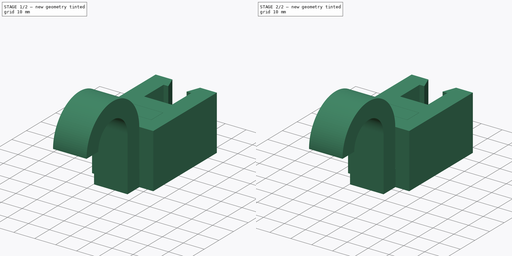
[diagram: build sequence overview — one tinted view per stage of 2, left to right]
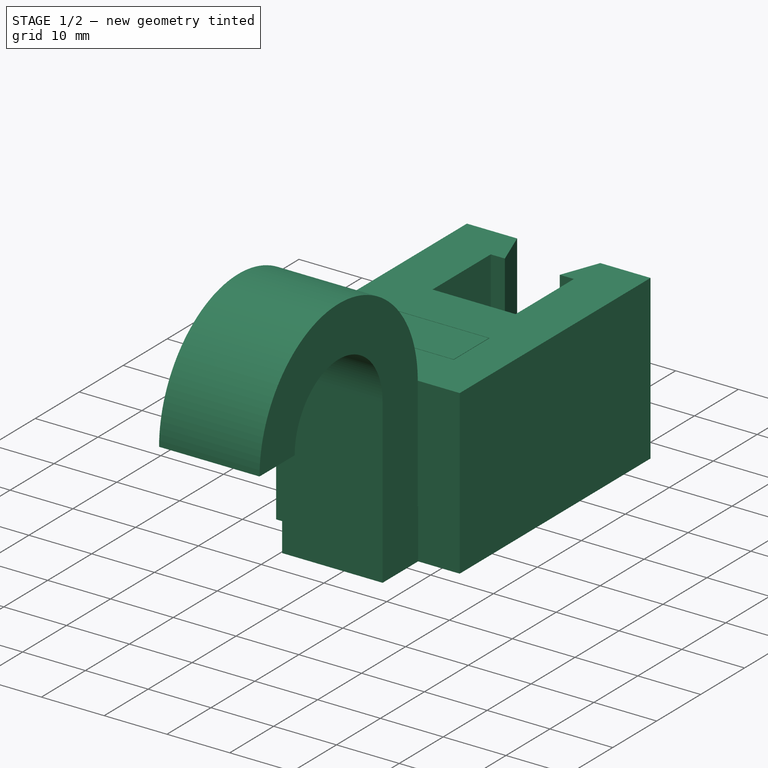
[diagram: stage 1 of 2 — iso view after this stage's code; geometry added in this stage tinted green]
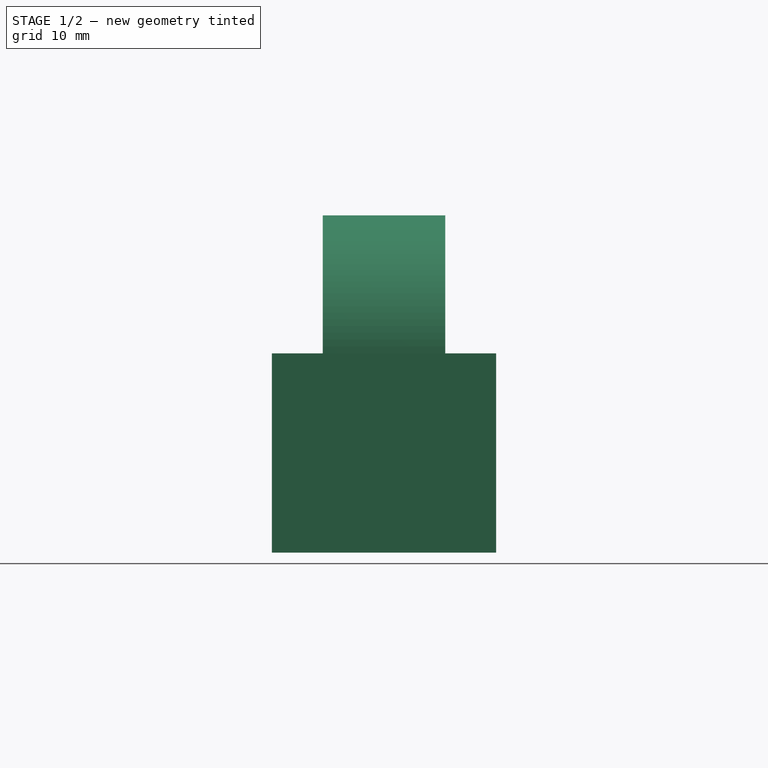
[diagram: stage 1 of 2 — front view after this stage's code; geometry added in this stage tinted green]
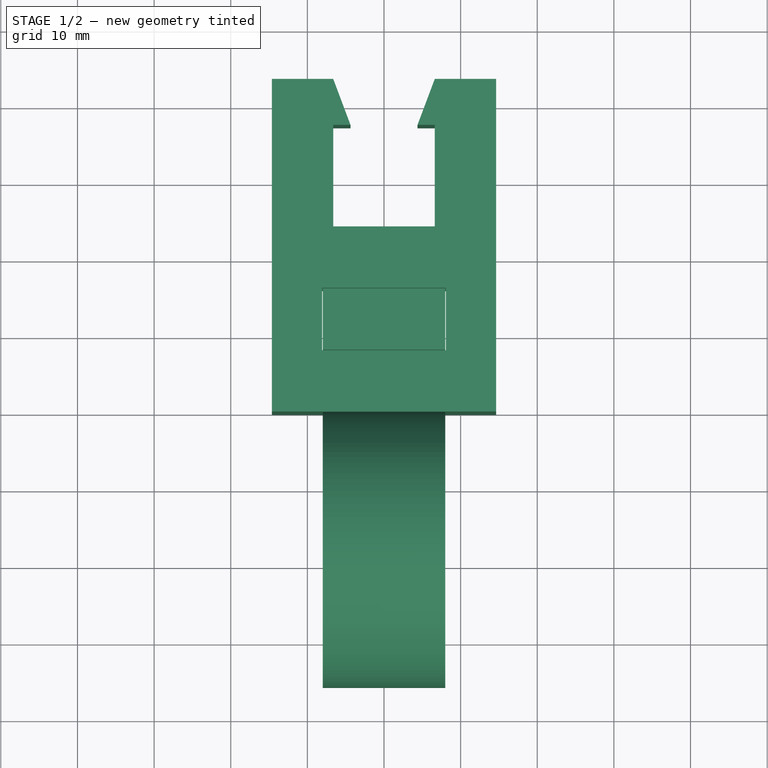
[diagram: stage 1 of 2 — top view after this stage's code; geometry added in this stage tinted green]
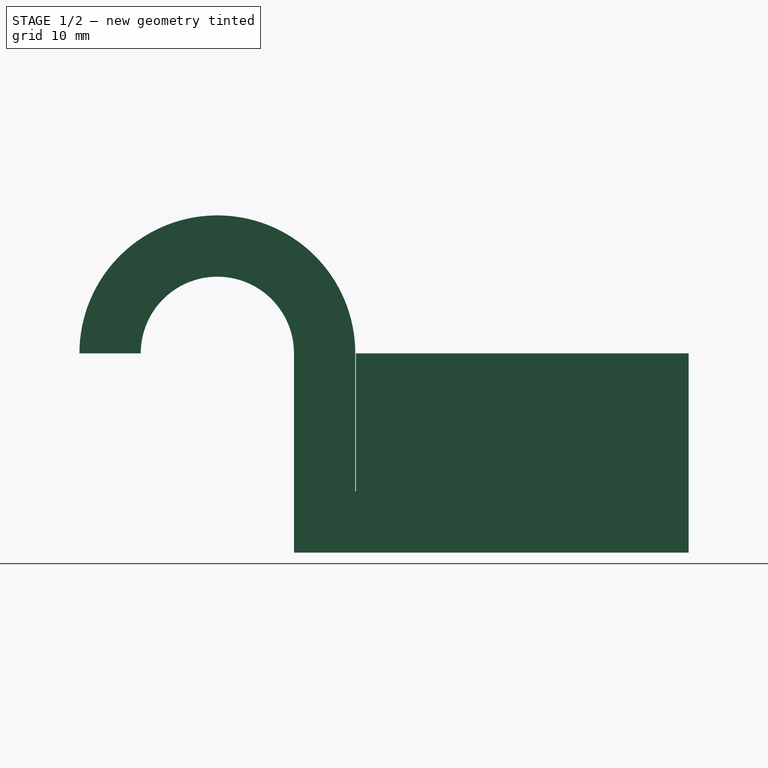
[diagram: stage 1 of 2 — right view after this stage's code; geometry added in this stage tinted green]
FCSTD DOCUMENT  (FreeCAD 1.0R38806 (Git))
Label: banister_hook_proto
License: All rights reserved
LicenseURL: http://en.wikipedia.org/wiki/All_rights_reserved
objects: Sketcher::SketchObject×3, PartDesign::Pad×2, PartDesign::Body×2, Spreadsheet::Sheet×1, PartDesign::Pocket×1
note: 17 computed .brp shape members not serialized (recipe doc carries the construction recipe); baked Part::Feature solids carry a one-line shape summary decoded from their .brp

FEATURE [Spreadsheet::Sheet] Spreadsheet  label="$params"
  cells = A1='name; B1='value; A2='tol; B2(tol)=0.16; A3='thickness; B3(thickness)=8; A4='b_width; B4(b_width)=13.25; A5='b_length; B5(b_length)=13.25; A6='clip_gap; B6(clip_gap)==b_width * 0.66; A7='clip_depth; B7(clip_depth)=6; A8='hook_radius; B8(hook_radius)=10; A9='hook_width; B9(hook_width)=16; A10='hook_thickness; B10(hook_thickness)=8; A11='body_depth; B11(body_depth)=26; A12='hook_angle; B12(hook_angle)=180
FEATURE [Sketcher::SketchObject] Sketch  label="MainBodyPadSketch"
  ArcFitTolerance = 1e-06
  AttachmentSupport = -> [XY_Plane]
  FullyConstrained = true
  MakeInternals = false
  MapMode = 5
  expr: Constraints[36] = <<$params>>.b_length
  expr: Constraints[37] = <<$params>>.b_width
  expr: Constraints[39] = <<$params>>.thickness
  expr: Constraints[43] = <<$params>>.clip_gap
  expr: Constraints[44] = <<$params>>.clip_depth
  expr: Constraints[53] = <<$params>>.hook_width + <<$params>>.tol
  expr: Constraints[54] = <<$params>>.hook_thickness + <<$params>>.tol
  expr: Constraints[55] = <<$params>>.thickness
  expr: Constraints[56] = <<$params>>.thickness
  sketch-geometry (23):
    g0: LineSegment StartX=-4.3725 StartY=37.41 StartZ=0 EndX=-6.625 EndY=43.41 EndZ=0
    g1: LineSegment StartX=-4.3725 StartY=37.41 StartZ=0 EndX=-6.625 EndY=37.41 EndZ=0
    g2: LineSegment StartX=-6.625 StartY=43.41 StartZ=0 EndX=-14.625 EndY=43.41 EndZ=0
    g3: LineSegment StartX=-14.625 StartY=43.41 StartZ=0 EndX=-14.625 EndY=0 EndZ=0
    g4: LineSegment StartX=-14.625 StartY=0 StartZ=0 EndX=14.625 EndY=0 EndZ=0
    g5: LineSegment StartX=14.625 StartY=0 StartZ=0 EndX=14.625 EndY=43.41 EndZ=0
    g6: LineSegment StartX=14.625 StartY=43.41 StartZ=0 EndX=6.625 EndY=43.41 EndZ=0
    g7: LineSegment StartX=6.625 StartY=43.41 StartZ=0 EndX=4.3725 EndY=37.41 EndZ=0
    g8: LineSegment StartX=4.3725 StartY=37.41 StartZ=0 EndX=6.625 EndY=37.41 EndZ=0
    g9: LineSegment StartX=6.625 StartY=37.41 StartZ=0 EndX=6.625 EndY=24.16 EndZ=0
    g10: LineSegment StartX=6.625 StartY=24.16 StartZ=0 EndX=-6.625 EndY=24.16 EndZ=0
    g11: LineSegment StartX=-6.625 StartY=24.16 StartZ=0 EndX=-6.625 EndY=37.41 EndZ=0
    g12: LineSegment [constr] StartX=-4.3725 StartY=37.41 StartZ=0 EndX=0 EndY=37.41 EndZ=0
    g13: LineSegment [constr] StartX=0 StartY=37.41 StartZ=0 EndX=4.3725 EndY=37.41 EndZ=0
    g14: LineSegment [constr] StartX=-6.625 StartY=43.41 StartZ=0 EndX=-6.625 EndY=37.41 EndZ=0
    g15: LineSegment [constr] StartX=6.625 StartY=43.41 StartZ=0 EndX=6.625 EndY=37.41 EndZ=0
    g16: LineSegment [constr] StartX=-6.625 StartY=43.41 StartZ=0 EndX=6.625 EndY=43.41 EndZ=0
    g17: LineSegment StartX=-8.08 StartY=16.16 StartZ=0 EndX=-8.08 EndY=8 EndZ=0
    g18: LineSegment StartX=-8.08 StartY=8 StartZ=0 EndX=8.08 EndY=8 EndZ=0
    g19: LineSegment StartX=8.08 StartY=8 StartZ=0 EndX=8.08 EndY=16.16 EndZ=0
    g20: LineSegment StartX=8.08 StartY=16.16 StartZ=0 EndX=-8.08 EndY=16.16 EndZ=0
    g21: LineSegment [constr] StartX=0 StartY=12.08 StartZ=0 EndX=-8.08 EndY=16.16 EndZ=0
    g22: LineSegment [constr] StartX=0 StartY=12.08 StartZ=0 EndX=8.08 EndY=8 EndZ=0
  constraints (64):
    c: Coincident(g0,g1)
    c: Coincident(g0,g2)
    c: Horizontal(g2)
    c: Coincident(g2,g3)
    c: Vertical(g3)
    c: Coincident(g3,g4)
    c: Horizontal(g4)
    c: Coincident(g4,g5)
    c: Vertical(g5)
    c: Coincident(g5,g6)
    c: Coincident(g6,g7)
    c: Coincident(g7,g8)
    c: Coincident(g8,g9)
    c: Vertical(g9)
    c: Coincident(g9,g10)
    c: Horizontal(g10)
    c: Coincident(g10,g11)
    c: Coincident(g11,g1)
    c: Vertical(g11)
    c: Horizontal(g8)
    c: Horizontal(g1)
    c: Horizontal(g6)
    c: Coincident(g12,g0)
    c: PointOnObject(g12,g-2)
    c: Horizontal(g12)
    c: Coincident(g13,g12)
    c: Coincident(g13,g7)
    c: Horizontal(g13)
    c: Equal(g12,g13)
    c: Equal(g1,g8)
    c: Coincident(g14,g0)
    c: Coincident(g14,g1)
    c: Vertical(g14)
    c: Coincident(g15,g6)
    c: Coincident(g15,g8)
    c: Vertical(g15)
    c: DistanceY(g11,g11) = 13.25
    c: DistanceX(g10,g10) = 13.25
    c: Equal(g2,g6)
    c: DistanceX(g2,g2) = 8
    c: Coincident(g16,g0)
    c: Coincident(g16,g6)
    c: Horizontal(g16)
    c: DistanceX(g0,g7) = 8.745
    c: DistanceY(g14,g14) = 6
    c: Coincident(g17,g18)
    c: Coincident(g18,g19)
    c: Coincident(g19,g20)
    c: Coincident(g20,g17)
    c: Vertical(g17)
    c: Vertical(g19)
    c: Horizontal(g18)
    c: Horizontal(g20)
    c: DistanceX(g18,g18) = 16.16
    c: Distance(g17,g17) = 8.16
    c: DistanceY(g3,g17) = 8
    c: Distance(g20,g10) = 8
    c: PointOnObject(g21,g-2)
    c: Coincident(g21,g17)
    c: Coincident(g22,g21)
    c: Coincident(g22,g18)
    c: Parallel(g21,g22)
    c: Equal(g21,g22)
    c: PointOnObject(g4,g-1)
FEATURE [PartDesign::Pad] Pad  label="MainBodyPad"
  Direction = (0,0,1)
  Length = 26
  Length2 = 10
  Profile = -> Sketch
  ReferenceAxis = -> Sketch [N_Axis]
  Refine = true
  Suppressed = false
  Type = 0
  expr: Length = <<$params>>.body_depth
FEATURE [PartDesign::Body] Body  label="MainBody"
  AllowCompound = false
  Group = -> [Sketch,Pad,Sketch001,Pocket]
  Origin = -> Origin
  Tip = -> Pocket
FEATURE [Sketcher::SketchObject] Sketch002  label="HookBodyPadSketch"
  ArcFitTolerance = 1e-06
  AttachmentSupport = -> [YZ_Plane001]
  FullyConstrained = true
  MakeInternals = false
  MapMode = 5
  Placement = pos=(0,0,0) rot=(0.57735,0.57735,0.57735;2.0944rad)
  expr: Constraints[14] = <<$params>>.body_depth
  expr: Constraints[15] = <<$params>>.hook_thickness
  expr: Constraints[16] = <<$params>>.hook_thickness
  expr: Constraints[21] = <<$params>>.hook_thickness
  expr: Constraints[22] = <<$params>>.thickness + <<$params>>.tol
  expr: Constraints[25] = <<$params>>.hook_radius
  expr: Constraints[33] = <<$params>>.tol / 2
  expr: Constraints[34] = <<$params>>.hook_angle
  sketch-geometry (12):
    g0: LineSegment StartX=8.08 StartY=26 StartZ=0 EndX=8.08 EndY=8 EndZ=0
    g1: LineSegment StartX=8.08 StartY=8 StartZ=0 EndX=-0.08 EndY=8 EndZ=0
    g2: LineSegment StartX=-0.08 StartY=8 StartZ=0 EndX=-0.08 EndY=26 EndZ=0
    g3: LineSegment StartX=8.08 StartY=26 StartZ=0 EndX=16.08 EndY=26 EndZ=0
    g4: LineSegment StartX=16.08 StartY=26 StartZ=0 EndX=16.08 EndY=0 EndZ=0
    g5: LineSegment StartX=16.08 StartY=0 StartZ=0 EndX=-8.08 EndY=0 EndZ=0
    g6: LineSegment StartX=-8.08 StartY=0 StartZ=0 EndX=-8.08 EndY=26 EndZ=0
    g7: LineSegment [constr] StartX=-0.08 StartY=26 StartZ=0 EndX=-8.08 EndY=26 EndZ=0
    g8: ArcOfCircle CenterX=-18.08 CenterY=26 CenterZ=0 NormalX=0 NormalY=0 NormalZ=1 AngleXU=0 Radius=10 StartAngle=3.86e-14 EndAngle=3.14159
    g9: ArcOfCircle CenterX=-18.08 CenterY=26 CenterZ=0 NormalX=0 NormalY=0 NormalZ=1 AngleXU=0 Radius=18 StartAngle=1.221e-13 EndAngle=3.14159
    g10: LineSegment StartX=-28.08 StartY=26 StartZ=0 EndX=-36.08 EndY=26 EndZ=0
    g11: LineSegment [constr] StartX=-0.08 StartY=8 StartZ=0 EndX=-0.08 EndY=0 EndZ=0
  constraints (35):
    c: Vertical(g0)
    c: Coincident(g0,g1)
    c: Horizontal(g1)
    c: Coincident(g1,g2)
    c: Vertical(g2)
    c: Coincident(g0,g3)
    c: Horizontal(g3)
    c: Coincident(g3,g4)
    c: PointOnObject(g4,g-1)
    c: Vertical(g4)
    c: Coincident(g4,g5)
    c: PointOnObject(g5,g-1)
    c: Coincident(g5,g6)
    c: Vertical(g6)
    c: DistanceY(g4,g4) = 26
    c: DistanceX(g3,g3) = 8
    c: Distance(g0,g5) = 8
    c: Equal(g6,g4)
    c: Coincident(g7,g2)
    c: Coincident(g7,g6)
    c: Horizontal(g7)
    c: DistanceX(g7,g7) = 8
    c: DistanceX(g1,g1) = 8.16
    c: Coincident(g9,g8)
    c: Coincident(g9,g2)
    c: Radius(g8) = 10
    c: Tangent(g8,g6) = -1.5708
    c: Coincident(g10,g8)
    c: Coincident(g10,g9)
    c: Perpendicular(g9,g10)
    c: Coincident(g11,g1)
    c: PointOnObject(g11,g5)
    c: Vertical(g11)
    c: Distance(g11,g-1) = 0.08
    c: Angle(g7,g10) = 3.14159
FEATURE [PartDesign::Pad] Pad001  label="HookBodyPad"
  Direction = (1,0,0)
  Length = 16
  Length2 = 10
  Midplane = true
  Placement = pos=(0,0,0) rot=(1,1,1;2.0944rad)
  Profile = -> Sketch002
  ReferenceAxis = -> Sketch002 [N_Axis]
  Refine = true
  Suppressed = false
  Type = 0
  expr: Length = <<$params>>.hook_width
FEATURE [PartDesign::Body] Body001  label="HookBody"
  AllowCompound = false
  Group = -> [Sketch002,Pad001]
  Origin = -> Origin001
  Tip = -> Pad001
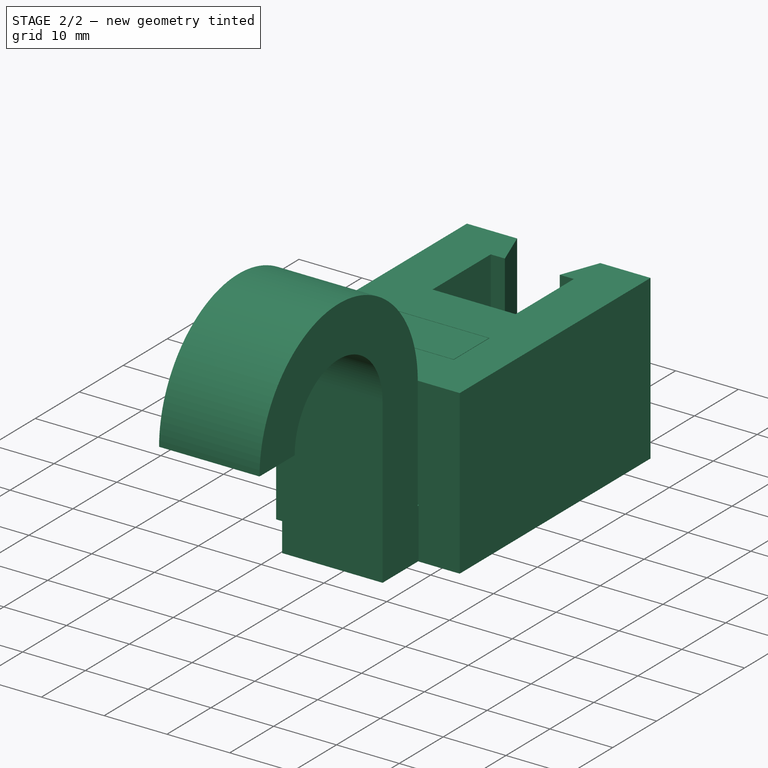
[diagram: stage 2 of 2 — iso view after this stage's code; geometry added in this stage tinted green]
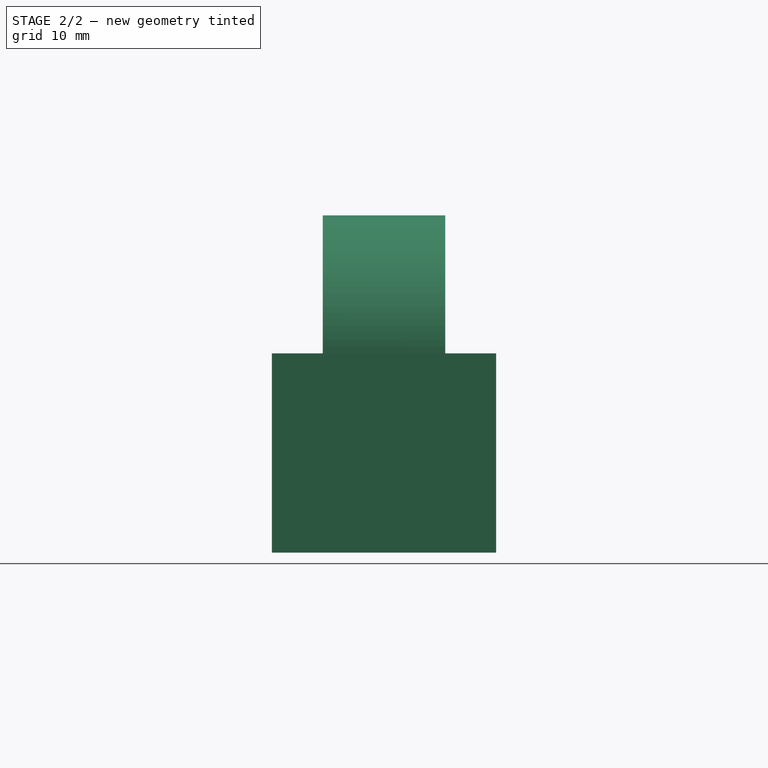
[diagram: stage 2 of 2 — front view after this stage's code; geometry added in this stage tinted green]
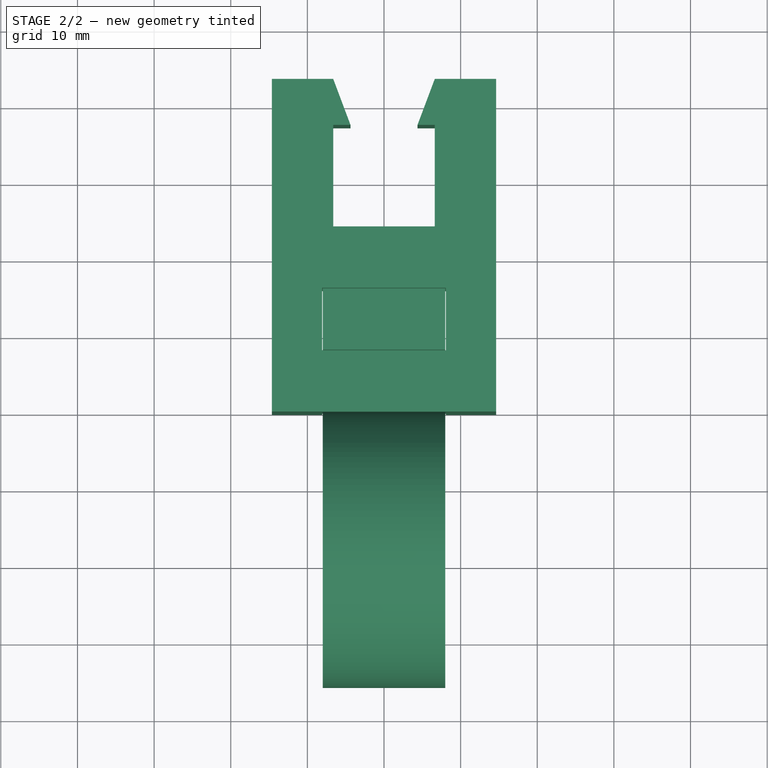
[diagram: stage 2 of 2 — top view after this stage's code; geometry added in this stage tinted green]
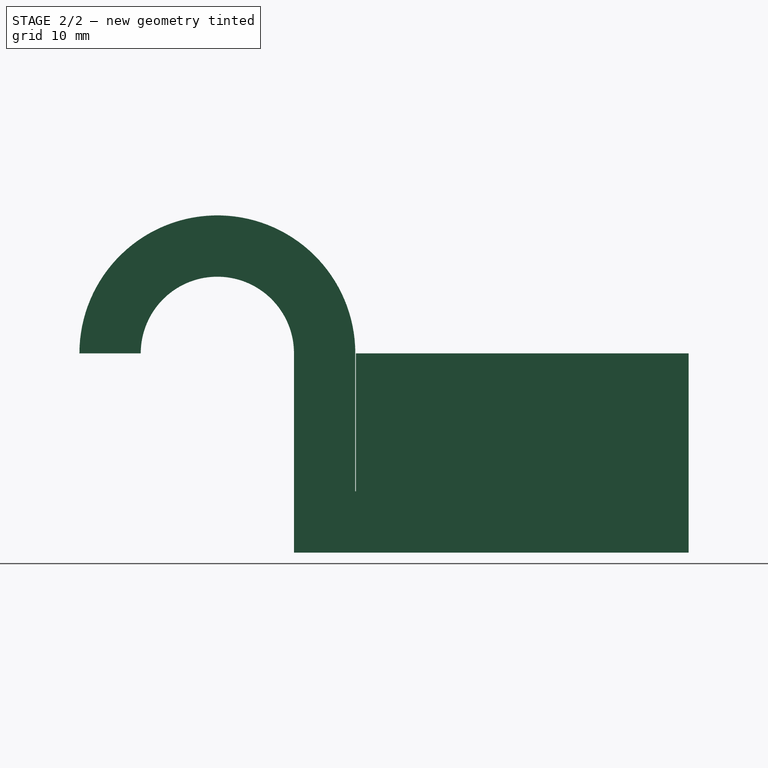
[diagram: stage 2 of 2 — right view after this stage's code; geometry added in this stage tinted green]
FEATURE [Sketcher::SketchObject] Sketch001  label="MainBodyCutSketch"
  ArcFitTolerance = 1e-06
  AttachmentSupport = -> [Pad]
  ExternalGeometry = -> [Sketch]
  FullyConstrained = true
  MakeInternals = false
  MapMode = 5
  Placement = pos=(0,0,0) rot=(1,0,0;1.5708rad)
  expr: Constraints[9] = -<<$params>>.thickness - <<$params>>.tol
  sketch-geometry (4):
    g0: LineSegment StartX=-8.08 StartY=1.8e-15 StartZ=0 EndX=-8.08 EndY=8.16 EndZ=0
    g1: LineSegment StartX=-8.08 StartY=8.16 StartZ=0 EndX=8.08 EndY=8.16 EndZ=0
    g2: LineSegment StartX=8.08 StartY=8.16 StartZ=0 EndX=8.08 EndY=1.8e-15 EndZ=0
    g3: LineSegment StartX=8.08 StartY=1.8e-15 StartZ=0 EndX=-8.08 EndY=1.8e-15 EndZ=0
  constraints (10):
    c: Coincident(g0,g1)
    c: Coincident(g1,g2)
    c: Coincident(g2,g3)
    c: Coincident(g3,g0)
    c: Vertical(g0)
    c: Vertical(g2)
    c: Horizontal(g1)
    c: Coincident(g0,g-3)
    c: Coincident(g2,g-3)
    c: DistanceY(g2,g2) = -8.16
FEATURE [PartDesign::Pocket] Pocket  label="MainBodyCut"
  BaseFeature = -> Pad
  Direction = (0,1,-2e-16)
  Length = 5
  Length2 = 5
  Profile = -> Sketch001
  ReferenceAxis = -> Sketch001 [N_Axis]
  Refine = true
  Suppressed = false
  Type = 2
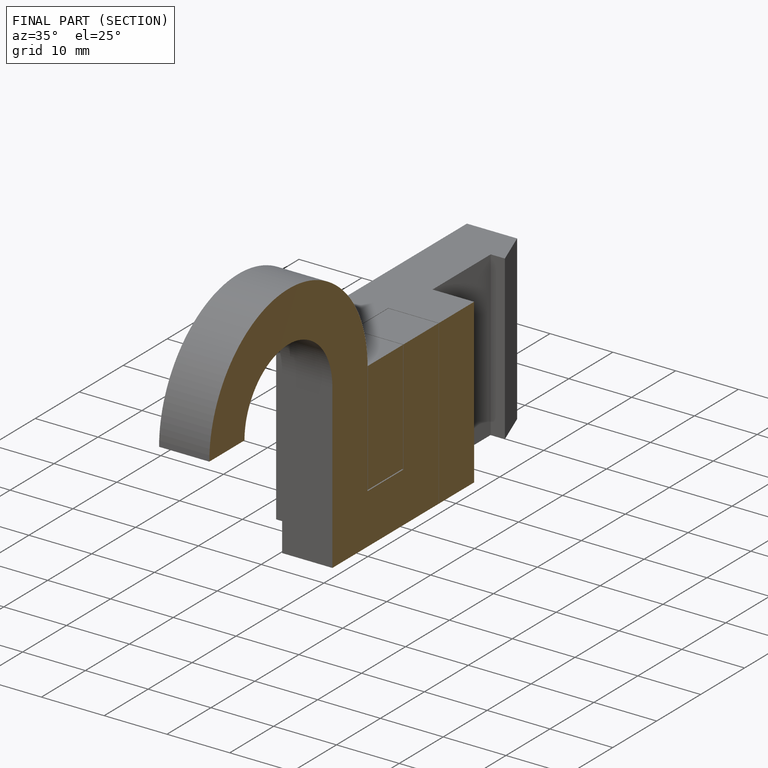
[diagram: finished part — half-section view (interior)]
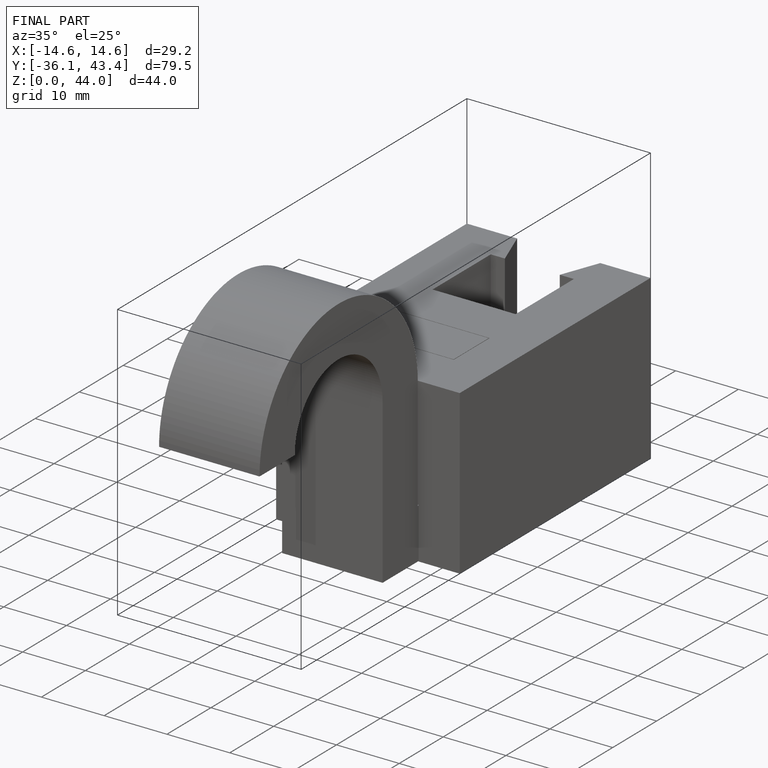
[diagram: finished part — iso view with bounding-box wireframe]
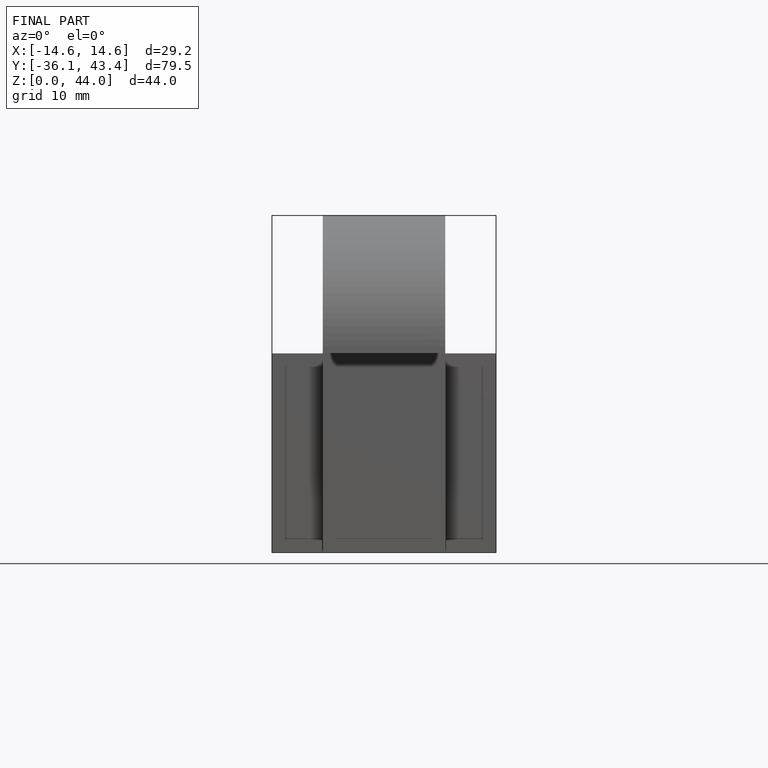
[diagram: finished part — front view with bounding-box wireframe]
